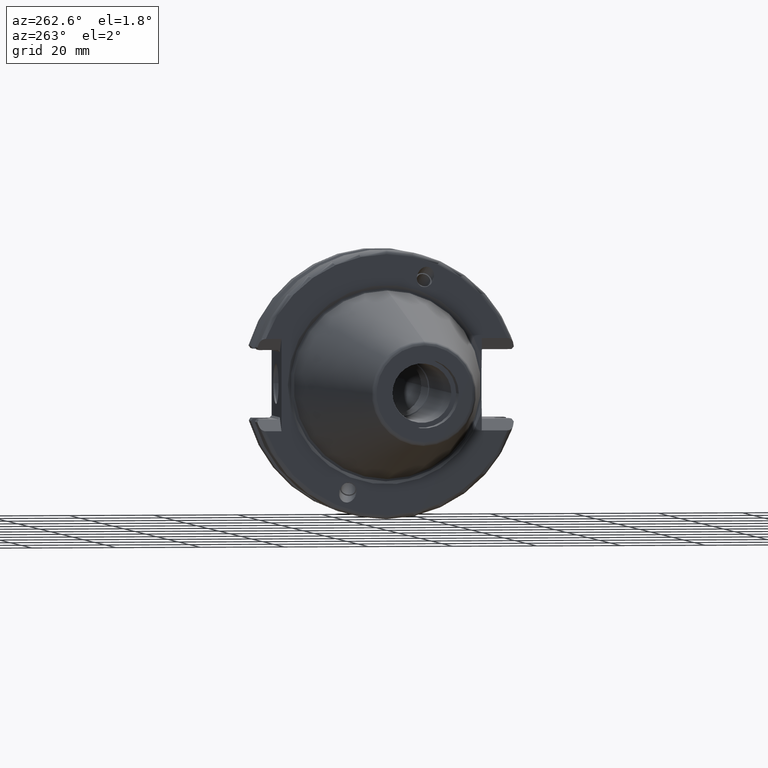
[diagram: clean part render]
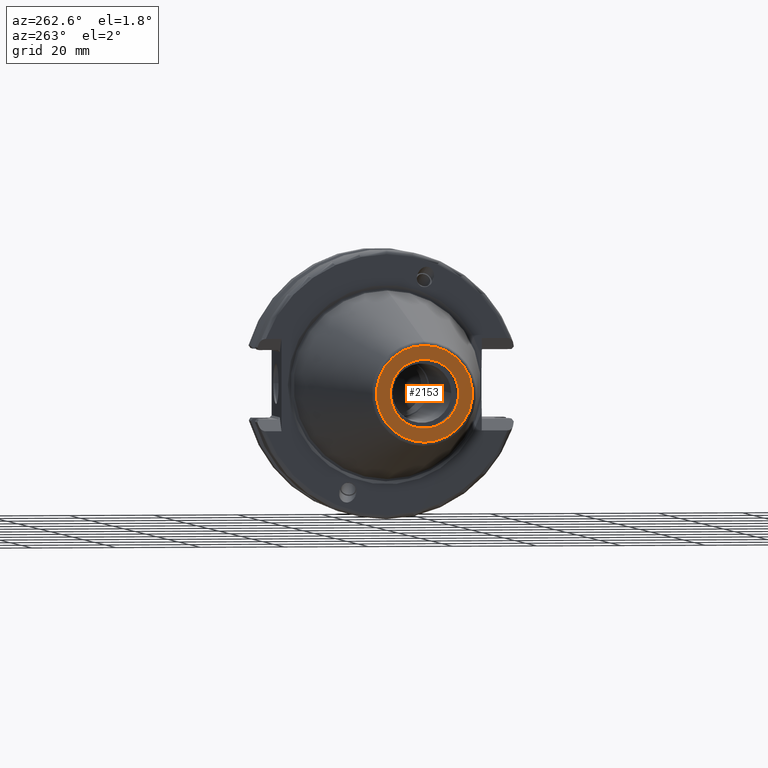
[diagram: same view with one face highlighted and labeled with its STEP entity id]
A machine part, auxiliary view. The second image highlights one B-rep face of the part: STEP entity #2153.
In plain terms, the highlighted planar face has unit normal (1, 0, 0).
Its self-contained STEP definition (entity closure, byte-faithful):
#17=CARTESIAN_POINT('',(-6.825E1,0.E0,0.E0));
#18=DIRECTION('',(-1.E0,0.E0,0.E0));
#19=DIRECTION('',(0.E0,1.E0,0.E0));
#20=AXIS2_PLACEMENT_3D('',#17,#18,#19);
#22=CARTESIAN_POINT('',(-6.825E1,0.E0,0.E0));
#23=DIRECTION('',(-1.E0,0.E0,0.E0));
#24=DIRECTION('',(0.E0,-1.E0,0.E0));
#25=AXIS2_PLACEMENT_3D('',#22,#23,#24);
#27=CARTESIAN_POINT('',(-6.825E1,0.E0,0.E0));
#28=DIRECTION('',(-1.E0,0.E0,0.E0));
#29=DIRECTION('',(0.E0,0.E0,-1.E0));
#30=AXIS2_PLACEMENT_3D('',#27,#28,#29);
#32=CARTESIAN_POINT('',(-6.825E1,0.E0,0.E0));
#33=DIRECTION('',(-1.E0,0.E0,0.E0));
#34=DIRECTION('',(0.E0,0.E0,1.E0));
#35=AXIS2_PLACEMENT_3D('',#32,#33,#34);
#1847=CARTESIAN_POINT('',(-6.825E1,8.15E0,0.E0));
#1848=CARTESIAN_POINT('',(-6.825E1,-8.15E0,0.E0));
#1849=VERTEX_POINT('',#1847);
#1850=VERTEX_POINT('',#1848);
#1855=CARTESIAN_POINT('',(-6.825E1,0.E0,-1.140713176206E1));
#1856=CARTESIAN_POINT('',(-6.825E1,0.E0,1.140713176206E1));
#1857=VERTEX_POINT('',#1855);
#1858=VERTEX_POINT('',#1856);
#2137=CARTESIAN_POINT('',(-6.825E1,0.E0,0.E0));
#2138=DIRECTION('',(1.E0,0.E0,0.E0));
#2139=DIRECTION('',(0.E0,0.E0,1.E0));
#2140=AXIS2_PLACEMENT_3D('',#2137,#2138,#2139);
#2141=PLANE('',#2140);
#2143=ORIENTED_EDGE('',*,*,#2142,.F.);
#2144=ORIENTED_EDGE('',*,*,#2127,.F.);
#2145=EDGE_LOOP('',(#2143,#2144));
#2146=FACE_OUTER_BOUND('',#2145,.F.);
#2148=ORIENTED_EDGE('',*,*,#2147,.T.);
#2150=ORIENTED_EDGE('',*,*,#2149,.T.);
#2151=EDGE_LOOP('',(#2148,#2150));
#2152=FACE_BOUND('',#2151,.F.);
#2153=ADVANCED_FACE('',(#2146,#2152),#2141,.F.);
#21=CIRCLE('',#20,8.15E0);
#26=CIRCLE('',#25,8.15E0);
#31=CIRCLE('',#30,1.140713176206E1);
#36=CIRCLE('',#35,1.140713176206E1);
#2127=EDGE_CURVE('',#1858,#1857,#36,.T.);
#2142=EDGE_CURVE('',#1857,#1858,#31,.T.);
#2147=EDGE_CURVE('',#1849,#1850,#21,.T.);
#2149=EDGE_CURVE('',#1850,#1849,#26,.T.);